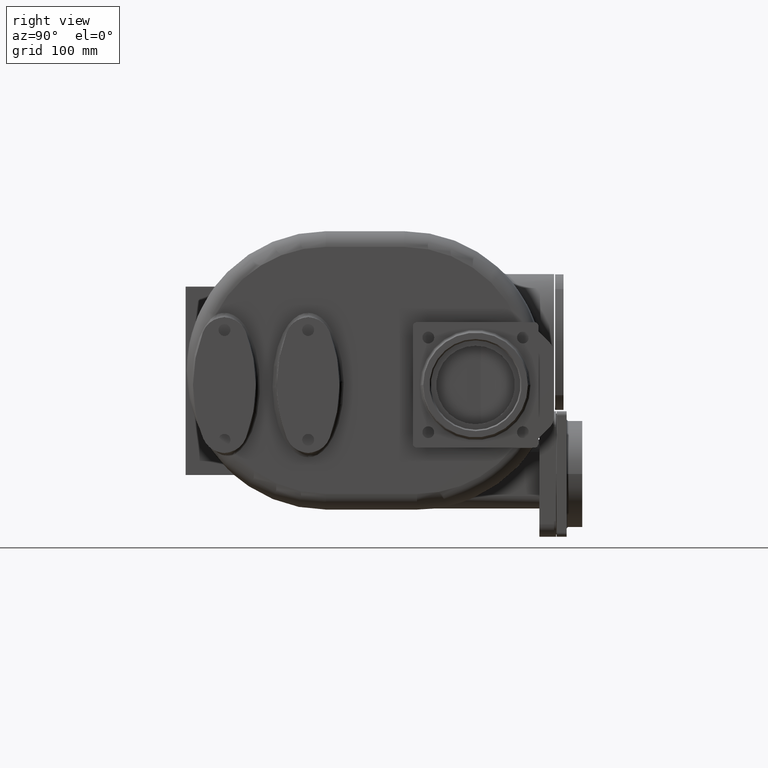
[diagram: clean part render]
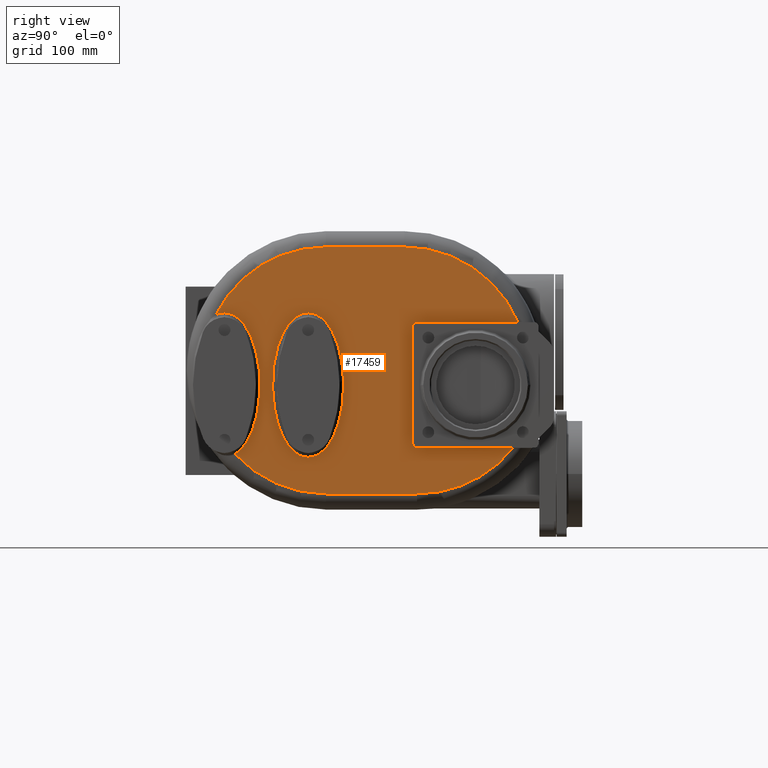
[diagram: same view with one face highlighted and labeled with its STEP entity id]
A machine part, right view. The second image highlights one B-rep face of the part: STEP entity #17459.
In plain terms, the highlighted planar face has unit normal (-1, 0, 0).
Its self-contained STEP definition (entity closure, byte-faithful):
#2974=DIRECTION('',(0.E0,1.E0,0.E0));
#2975=VECTOR('',#2974,8.400438864969E1);
#2976=CARTESIAN_POINT('',(1.1E2,2.29E2,-7.4E1));
#2977=LINE('',#2976,#2975);
#3019=DIRECTION('',(0.E0,0.E0,-1.E0));
#3020=VECTOR('',#3019,9.6E1);
#3021=CARTESIAN_POINT('',(1.1E2,2.17E2,3.4E1));
#3022=LINE('',#3021,#3020);
#3064=DIRECTION('',(0.E0,-1.E0,0.E0));
#3065=VECTOR('',#3064,8.853968893431E1);
#3066=CARTESIAN_POINT('',(1.1E2,3.175396889343E2,4.6E1));
#3067=LINE('',#3066,#3065);
#3579=CARTESIAN_POINT('',(1.1E2,2.29E2,3.4E1));
#3580=DIRECTION('',(-1.E0,0.E0,0.E0));
#3581=DIRECTION('',(0.E0,-1.E0,0.E0));
#3582=AXIS2_PLACEMENT_3D('',#3579,#3580,#3581);
#3584=CARTESIAN_POINT('',(1.100000341387E2,3.700000002161E1,5.499999999925E1));
#3585=CARTESIAN_POINT('',(1.100000708783E2,3.680097239023E1,5.499993196840E1));
#3586=CARTESIAN_POINT('',(1.099999671053E2,3.640292883573E1,5.499290041204E1));
#3587=CARTESIAN_POINT('',(1.100000088141E2,3.580601649330E1,5.496273074054E1));
#3588=CARTESIAN_POINT('',(1.099999976382E2,3.520890250204E1,5.491261561219E1));
#3589=CARTESIAN_POINT('',(1.100000006329E2,3.461137704476E1,5.484259038185E1));
#3590=CARTESIAN_POINT('',(1.099999998300E2,3.401322981939E1,5.475241493042E1));
#3591=CARTESIAN_POINT('',(1.100000000469E2,3.341429280710E1,5.464176403460E1));
#3592=CARTESIAN_POINT('',(1.099999999823E2,3.281449687905E1,5.451010134866E1));
#3593=CARTESIAN_POINT('',(1.100000000239E2,3.221359975980E1,5.435711922527E1));
#3594=CARTESIAN_POINT('',(1.099999999222E2,3.161082344791E1,5.418243015533E1));
#3595=CARTESIAN_POINT('',(1.100000002873E2,3.100552429685E1,5.398546861896E1));
#3596=CARTESIAN_POINT('',(1.099999989284E2,3.039710704402E1,5.376552558444E1));
#3597=CARTESIAN_POINT('',(1.100000039990E2,2.978527901622E1,5.352185783774E1));
#3598=CARTESIAN_POINT('',(1.099999850757E2,2.916921400116E1,5.325328612320E1));
#3599=CARTESIAN_POINT('',(1.100000321575E2,2.875690249957E1,5.305760617679E1));
#3600=CARTESIAN_POINT('',(1.099999968321E2,2.854941796201E1,5.295498208904E1));
#3602=CARTESIAN_POINT('',(1.1E2,1.34E2,0.E0));
#3603=DIRECTION('',(1.E0,0.E0,0.E0));
#3604=DIRECTION('',(0.E0,0.E0,1.E0));
#3605=AXIS2_PLACEMENT_3D('',#3602,#3603,#3604);
#3607=DIRECTION('',(0.E0,-1.E0,0.E0));
#3608=VECTOR('',#3607,7.487506727666E1);
#3609=CARTESIAN_POINT('',(1.1E2,2.088750672767E2,1.18E2));
#3610=LINE('',#3609,#3608);
#3611=CARTESIAN_POINT('',(1.1E2,2.088750672767E2,0.E0));
#3612=DIRECTION('',(1.E0,0.E0,0.E0));
#3613=DIRECTION('',(0.E0,9.208866242174E-1,3.898305084746E-1));
#3614=AXIS2_PLACEMENT_3D('',#3611,#3612,#3613);
#3616=CARTESIAN_POINT('',(1.1E2,2.210913863051E2,0.E0));
#3617=DIRECTION('',(1.E0,0.E0,0.E0));
#3618=DIRECTION('',(0.E0,0.E0,-1.E0));
#3619=AXIS2_PLACEMENT_3D('',#3616,#3617,#3618);
#3621=DIRECTION('',(0.E0,1.E0,0.E0));
#3622=VECTOR('',#3621,8.709138630508E1);
#3623=CARTESIAN_POINT('',(1.1E2,1.34E2,-1.18E2));
#3624=LINE('',#3623,#3622);
#3625=CARTESIAN_POINT('',(1.1E2,1.34E2,0.E0));
#3626=DIRECTION('',(1.E0,0.E0,0.E0));
#3627=DIRECTION('',(0.E0,-7.353211135372E-1,-6.777188650071E-1));
#3628=AXIS2_PLACEMENT_3D('',#3625,#3626,#3627);
#3630=CARTESIAN_POINT('',(1.099999543372E2,4.723210860638E1,-7.997082607466E1));
#3631=CARTESIAN_POINT('',(1.099999672044E2,4.744887637065E1,-7.983830972836E1));
#3632=CARTESIAN_POINT('',(1.100000152205E2,4.788421310808E1,-7.956267798863E1));
#3633=CARTESIAN_POINT('',(1.099999959217E2,4.854165435227E1,-7.911669413329E1));
#3634=CARTESIAN_POINT('',(1.100000010928E2,4.920403264646E1,-7.863645946711E1));
#3635=CARTESIAN_POINT('',(1.099999997072E2,4.987142502206E1,-7.812026977306E1));
#3636=CARTESIAN_POINT('',(1.100000000785E2,5.054382344706E1,-7.756641570659E1));
#3637=CARTESIAN_POINT('',(1.099999999790E2,5.122140767803E1,-7.697293014563E1));
#3638=CARTESIAN_POINT('',(1.100000000056E2,5.190458386940E1,-7.633753946764E1));
#3639=CARTESIAN_POINT('',(1.099999999985E2,5.259345536835E1,-7.565779639596E1));
#3640=CARTESIAN_POINT('',(1.100000000004E2,5.328793820990E1,-7.493123532316E1));
#3641=CARTESIAN_POINT('',(1.099999999999E2,5.398805002656E1,-7.415527772311E1));
#3642=CARTESIAN_POINT('',(1.1E2,5.469356915198E1,-7.332719221088E1));
#3643=CARTESIAN_POINT('',(1.1E2,5.540405553030E1,-7.244414900337E1));
#3644=CARTESIAN_POINT('',(1.1E2,5.611932054007E1,-7.150312800153E1));
#3645=CARTESIAN_POINT('',(1.1E2,5.683880787190E1,-7.050095686836E1));
#3646=CARTESIAN_POINT('',(1.1E2,5.756181289181E1,-6.943439112549E1));
#3647=CARTESIAN_POINT('',(1.1E2,5.828766710701E1,-6.830019903693E1));
#3648=CARTESIAN_POINT('',(1.1E2,5.901524028680E1,-6.709496643782E1));
#3649=CARTESIAN_POINT('',(1.1E2,5.974345550354E1,-6.581549086722E1));
#3650=CARTESIAN_POINT('',(1.1E2,6.047084105674E1,-6.445844271783E1));
#3651=CARTESIAN_POINT('',(1.1E2,6.119582239587E1,-6.302079162365E1));
#3652=CARTESIAN_POINT('',(1.1E2,6.191651517053E1,-6.149950079174E1));
#3653=CARTESIAN_POINT('',(1.1E2,6.263086393451E1,-5.989197344010E1));
#3654=CARTESIAN_POINT('',(1.1E2,6.333650082074E1,-5.819571771885E1));
#3655=CARTESIAN_POINT('',(1.1E2,6.403093264669E1,-5.640880873567E1));
#3656=CARTESIAN_POINT('',(1.1E2,6.471132017215E1,-5.452959470782E1));
#3657=CARTESIAN_POINT('',(1.1E2,6.537475395340E1,-5.255708300858E1));
#3658=CARTESIAN_POINT('',(1.1E2,6.601797956900E1,-5.049086526291E1));
#3659=CARTESIAN_POINT('',(1.1E2,6.663774219921E1,-4.833111773220E1));
#3660=CARTESIAN_POINT('',(1.1E2,6.723048124901E1,-4.607904488613E1));
#3661=CARTESIAN_POINT('',(1.1E2,6.779270800502E1,-4.373631667015E1));
#3662=CARTESIAN_POINT('',(1.1E2,6.832070958393E1,-4.130606128624E1));
#3663=CARTESIAN_POINT('',(1.1E2,6.881094878415E1,-3.879175315316E1));
#3664=CARTESIAN_POINT('',(1.1E2,6.925977533645E1,-3.619857936417E1));
#3665=CARTESIAN_POINT('',(1.1E2,6.966386836026E1,-3.353196396484E1));
#3666=CARTESIAN_POINT('',(1.1E2,7.001987983940E1,-3.079910475422E1));
#3667=CARTESIAN_POINT('',(1.1E2,7.032499614626E1,-2.800741775595E1));
#3668=CARTESIAN_POINT('',(1.1E2,7.057643095792E1,-2.516579590509E1));
#3669=CARTESIAN_POINT('',(1.1E2,7.077214762450E1,-2.228352557780E1));
#3670=CARTESIAN_POINT('',(1.1E2,7.091018617325E1,-1.937063317737E1));
#3671=CARTESIAN_POINT('',(1.1E2,7.098946177269E1,-1.643772968525E1));
#3672=CARTESIAN_POINT('',(1.1E2,7.100909297092E1,-1.349549588116E1));
#3673=CARTESIAN_POINT('',(1.1E2,7.096895849541E1,-1.055497448784E1));
#3674=CARTESIAN_POINT('',(1.1E2,7.086943039988E1,-7.627140036731E0));
#3675=CARTESIAN_POINT('',(1.1E2,7.071131924391E1,-4.722572269406E0));
#3676=CARTESIAN_POINT('',(1.1E2,7.049619211540E1,-1.851885386979E0));
#3677=CARTESIAN_POINT('',(1.1E2,7.022578760374E1,9.753195635171E-1));
#3678=CARTESIAN_POINT('',(1.1E2,6.990263025099E1,3.749580480794E0));
#3679=CARTESIAN_POINT('',(1.1E2,6.952928110042E1,6.462768362264E0));
#3680=CARTESIAN_POINT('',(1.1E2,6.910893796332E1,9.107190347574E0));
#3681=CARTESIAN_POINT('',(1.1E2,6.864476014091E1,1.167653731937E1));
#3682=CARTESIAN_POINT('',(1.1E2,6.814032802348E1,1.416509447983E1));
#3683=CARTESIAN_POINT('',(1.1E2,6.759917444943E1,1.656844657718E1));
#3684=CARTESIAN_POINT('',(1.1E2,6.702495166338E1,1.888299141485E1));
#3685=CARTESIAN_POINT('',(1.1E2,6.642130890859E1,2.110620680994E1));
#3686=CARTESIAN_POINT('',(1.1E2,6.579176217392E1,2.323644581004E1));
#3687=CARTESIAN_POINT('',(1.1E2,6.513981678193E1,2.527280239615E1));
#3688=CARTESIAN_POINT('',(1.1E2,6.446879482657E1,2.721520990690E1));
#3689=CARTESIAN_POINT('',(1.1E2,6.378178382749E1,2.906429340787E1));
#3690=CARTESIAN_POINT('',(1.1E2,6.308178974480E1,3.082129502099E1));
#3691=CARTESIAN_POINT('',(1.1E2,6.237141461552E1,3.248796925527E1));
#3692=CARTESIAN_POINT('',(1.1E2,6.165326452042E1,3.406648066119E1));
#3693=CARTESIAN_POINT('',(1.1E2,6.092945084944E1,3.555937412831E1));
#3694=CARTESIAN_POINT('',(1.1E2,6.020209381240E1,3.696951124710E1));
#3695=CARTESIAN_POINT('',(1.1E2,5.947282674754E1,3.829989993361E1));
#3696=CARTESIAN_POINT('',(1.1E2,5.874330196921E1,3.955381225531E1));
#3697=CARTESIAN_POINT('',(1.1E2,5.801476097966E1,4.073435987854E1));
#3698=CARTESIAN_POINT('',(1.1E2,5.728843809056E1,4.184497366577E1));
#3699=CARTESIAN_POINT('',(1.1E2,5.656524817580E1,4.288878899396E1));
#3700=CARTESIAN_POINT('',(1.1E2,5.584593092887E1,4.386916128843E1));
#3701=CARTESIAN_POINT('',(1.1E2,5.513116875858E1,4.478935179873E1));
#3702=CARTESIAN_POINT('',(1.1E2,5.442137599042E1,4.565229257165E1));
#3703=CARTESIAN_POINT('',(1.1E2,5.371680006250E1,4.646123334315E1));
#3704=CARTESIAN_POINT('',(1.1E2,5.301777768746E1,4.721893738667E1));
#3705=CARTESIAN_POINT('',(1.1E2,5.232443197990E1,4.792800267063E1));
#3706=CARTESIAN_POINT('',(1.1E2,5.163673199935E1,4.859119206872E1));
#3707=CARTESIAN_POINT('',(1.1E2,5.095479997234E1,4.921077253581E1));
#3708=CARTESIAN_POINT('',(1.1E2,5.027850419576E1,4.978901828186E1));
#3709=CARTESIAN_POINT('',(1.1E2,4.960768428574E1,5.032813422770E1));
#3710=CARTESIAN_POINT('',(1.1E2,4.894232547867E1,5.082994972944E1));
#3711=CARTESIAN_POINT('',(1.1E2,4.828213603521E1,5.129636223599E1));
#3712=CARTESIAN_POINT('',(1.1E2,4.762694333652E1,5.172904345603E1));
#3713=CARTESIAN_POINT('',(1.1E2,4.697656343680E1,5.212952064717E1));
#3714=CARTESIAN_POINT('',(1.1E2,4.633063482376E1,5.249927275727E1));
#3715=CARTESIAN_POINT('',(1.1E2,4.568902445777E1,5.283954770875E1));
#3716=CARTESIAN_POINT('',(1.1E2,4.505144422475E1,5.315155989620E1));
#3717=CARTESIAN_POINT('',(1.1E2,4.441755838722E1,5.343639881120E1));
#3718=CARTESIAN_POINT('',(1.1E2,4.378701471232E1,5.369511280988E1));
#3719=CARTESIAN_POINT('',(1.100000000001E2,4.315941863997E1,5.392857126555E1));
#3720=CARTESIAN_POINT('',(1.099999999996E2,4.253474345312E1,5.413747290600E1));
#3721=CARTESIAN_POINT('',(1.100000000017E2,4.191292699206E1,5.432250362541E1));
#3722=CARTESIAN_POINT('',(1.099999999938E2,4.129347835992E1,5.448429294201E1));
#3723=CARTESIAN_POINT('',(1.100000000233E2,4.067575628066E1,5.462351051313E1));
#3724=CARTESIAN_POINT('',(1.099999999132E2,4.005894743094E1,5.474070176983E1));
#3725=CARTESIAN_POINT('',(1.100000003241E2,3.944319414709E1,5.483601554072E1));
#3726=CARTESIAN_POINT('',(1.099999987906E2,3.882898942710E1,5.490969619920E1));
#3727=CARTESIAN_POINT('',(1.100000045135E2,3.821673042123E1,5.496201239117E1));
#3728=CARTESIAN_POINT('',(1.099999831555E2,3.760673863994E1,5.499312083509E1));
#3729=CARTESIAN_POINT('',(1.100000362950E2,3.720195379061E1,5.499999627569E1));
#3730=CARTESIAN_POINT('',(1.100000341387E2,3.700000002161E1,5.499999999925E1));
#3732=CARTESIAN_POINT('',(1.100000345692E2,1.169999999769E2,-8.299999999909E1));
#3733=CARTESIAN_POINT('',(1.100000745274E2,1.172053575770E2,-8.299992015309E1));
#3734=CARTESIAN_POINT('',(1.099999654117E2,1.176161083095E2,-8.299239693976E1));
#3735=CARTESIAN_POINT('',(1.100000092679E2,1.182322454488E2,-8.296024805425E1));
#3736=CARTESIAN_POINT('',(1.099999975167E2,1.188486817463E2,-8.290683730320E1));
#3737=CARTESIAN_POINT('',(1.100000006654E2,1.194655815942E2,-8.283221162818E1));
#3738=CARTESIAN_POINT('',(1.099999998217E2,1.200830988653E2,-8.273610954363E1));
#3739=CARTESIAN_POINT('',(1.100000000478E2,1.207013450469E2,-8.261818579854E1));
#3740=CARTESIAN_POINT('',(1.099999999872E2,1.213203131283E2,-8.247786722334E1));
#3741=CARTESIAN_POINT('',(1.100000000034E2,1.219402165592E2,-8.231484758850E1));
#3742=CARTESIAN_POINT('',(1.099999999991E2,1.225622907589E2,-8.212859659191E1));
#3743=CARTESIAN_POINT('',(1.100000000002E2,1.231875387932E2,-8.191835218674E1));
#3744=CARTESIAN_POINT('',(1.099999999999E2,1.238170169391E2,-8.168309934260E1));
#3745=CARTESIAN_POINT('',(1.1E2,1.244505492748E2,-8.142207613776E1));
#3746=CARTESIAN_POINT('',(1.1E2,1.250874525148E2,-8.113466880634E1));
#3747=CARTESIAN_POINT('',(1.1E2,1.257267847247E2,-8.082035444312E1));
#3748=CARTESIAN_POINT('',(1.1E2,1.263690360287E2,-8.047813394957E1));
#3749=CARTESIAN_POINT('',(1.1E2,1.270157445933E2,-8.010623741457E1));
#3750=CARTESIAN_POINT('',(1.1E2,1.276680814920E2,-7.970276645046E1));
#3751=CARTESIAN_POINT('',(1.1E2,1.283259946959E2,-7.926635160042E1));
#3752=CARTESIAN_POINT('',(1.1E2,1.289888716501E2,-7.879594261937E1));
#3753=CARTESIAN_POINT('',(1.1E2,1.296564509546E2,-7.829017178613E1));
#3754=CARTESIAN_POINT('',(1.1E2,1.303294379665E2,-7.774679386344E1));
#3755=CARTESIAN_POINT('',(1.1E2,1.310081737212E2,-7.716364332716E1));
#3756=CARTESIAN_POINT('',(1.1E2,1.316927969564E2,-7.653862595468E1));
#3757=CARTESIAN_POINT('',(1.1E2,1.323833029157E2,-7.586948369876E1));
#3758=CARTESIAN_POINT('',(1.1E2,1.330797731133E2,-7.515353643051E1));
#3759=CARTESIAN_POINT('',(1.1E2,1.337820721812E2,-7.438828556443E1));
#3760=CARTESIAN_POINT('',(1.1E2,1.344899214568E2,-7.357119955131E1));
#3761=CARTESIAN_POINT('',(1.1E2,1.352031160169E2,-7.269912005095E1));
#3762=CARTESIAN_POINT('',(1.1E2,1.359212662584E2,-7.176917188384E1));
#3763=CARTESIAN_POINT('',(1.1E2,1.366438278848E2,-7.077835884515E1));
#3764=CARTESIAN_POINT('',(1.1E2,1.373701645551E2,-6.972321120222E1));
#3765=CARTESIAN_POINT('',(1.1E2,1.380995361843E2,-6.860063945077E1));
#3766=CARTESIAN_POINT('',(1.1E2,1.388308747968E2,-6.740722910300E1));
#3767=CARTESIAN_POINT('',(1.1E2,1.395630336881E2,-6.613975013247E1));
#3768=CARTESIAN_POINT('',(1.1E2,1.402946136415E2,-6.479496668735E1));
#3769=CARTESIAN_POINT('',(1.1E2,1.410240615075E2,-6.336961756951E1));
#3770=CARTESIAN_POINT('',(1.1E2,1.417495674106E2,-6.186070997889E1));
#3771=CARTESIAN_POINT('',(1.1E2,1.424690930081E2,-6.026541185902E1));
#3772=CARTESIAN_POINT('',(1.1E2,1.431803221155E2,-5.858123122104E1));
#3773=CARTESIAN_POINT('',(1.1E2,1.438808111785E2,-5.680594179471E1));
#3774=CARTESIAN_POINT('',(1.1E2,1.445677013472E2,-5.493790578014E1));
#3775=CARTESIAN_POINT('',(1.1E2,1.452381271049E2,-5.297591353351E1));
#3776=CARTESIAN_POINT('',(1.1E2,1.458887747195E2,-5.091949510894E1));
#3777=CARTESIAN_POINT('',(1.1E2,1.465164184936E2,-4.876874469639E1));
#3778=CARTESIAN_POINT('',(1.1E2,1.471174391630E2,-4.652463768519E1));
#3779=CARTESIAN_POINT('',(1.1E2,1.476883464577E2,-4.418891786254E1));
#3780=CARTESIAN_POINT('',(1.1E2,1.482253696211E2,-4.176434181166E1));
#3781=CARTESIAN_POINT('',(1.1E2,1.487249439580E2,-3.925458234104E1));
#3782=CARTESIAN_POINT('',(1.1E2,1.491833474196E2,-3.666439705538E1));
#3783=CARTESIAN_POINT('',(1.1E2,1.495972229965E2,-3.399943960634E1));
#3784=CARTESIAN_POINT('',(1.1E2,1.499631245334E2,-3.126656748319E1));
#3785=CARTESIAN_POINT('',(1.1E2,1.502782064750E2,-2.847326572713E1));
#3786=CARTESIAN_POINT('',(1.1E2,1.505395592222E2,-2.562842882548E1));
#3787=CARTESIAN_POINT('',(1.1E2,1.507450996823E2,-2.274111837272E1));
#3788=CARTESIAN_POINT('',(1.1E2,1.508927710620E2,-1.982171890690E1));
#3789=CARTESIAN_POINT('',(1.1E2,1.509813845373E2,-1.688056515121E1));
#3790=CARTESIAN_POINT('',(1.1E2,1.510100333424E2,-1.392867289549E1));
#3791=CARTESIAN_POINT('',(1.1E2,1.509784574822E2,-1.097716288549E1));
#3792=CARTESIAN_POINT('',(1.1E2,1.508870351841E2,-8.037008227826E0));
#3793=CARTESIAN_POINT('',(1.1E2,1.507364737569E2,-5.119148663093E0));
#3794=CARTESIAN_POINT('',(1.1E2,1.505283282856E2,-2.234143639390E0));
#3795=CARTESIAN_POINT('',(1.1E2,1.502642933553E2,6.080969789061E-1));
#3796=CARTESIAN_POINT('',(1.1E2,1.499468768304E2,3.398014640991E0));
#3797=CARTESIAN_POINT('',(1.1E2,1.495786302599E2,6.127294053383E0));
#3798=CARTESIAN_POINT('',(1.1E2,1.491627558978E2,8.788076084406E0));
#3799=CARTESIAN_POINT('',(1.1E2,1.487024240676E2,1.137386043306E1));
#3800=CARTESIAN_POINT('',(1.1E2,1.482012325867E2,1.387888399715E1));
#3801=CARTESIAN_POINT('',(1.1E2,1.476627453580E2,1.629847051437E1));
#3802=CARTESIAN_POINT('',(1.1E2,1.470906484976E2,1.862900738987E1));
#3803=CARTESIAN_POINT('',(1.1E2,1.464886504955E2,2.086772020388E1));
#3804=CARTESIAN_POINT('',(1.1E2,1.458603230284E2,2.301287181289E1));
#3805=CARTESIAN_POINT('',(1.1E2,1.452092153750E2,2.506354532793E1));
#3806=CARTESIAN_POINT('',(1.1E2,1.445387002688E2,2.701954771034E1));
#3807=CARTESIAN_POINT('',(1.1E2,1.438518898291E2,2.888161520049E1));
#3808=CARTESIAN_POINT('',(1.1E2,1.431518072100E2,3.065095847951E1));
#3809=CARTESIAN_POINT('',(1.1E2,1.424410697132E2,3.232942099220E1));
#3810=CARTESIAN_POINT('',(1.1E2,1.417222779180E2,3.391920765985E1));
#3811=CARTESIAN_POINT('',(1.1E2,1.409975848896E2,3.542283601458E1));
#3812=CARTESIAN_POINT('',(1.1E2,1.402691377107E2,3.684316849296E1));
#3813=CARTESIAN_POINT('',(1.1E2,1.395386070322E2,3.818318965233E1));
#3814=CARTESIAN_POINT('',(1.1E2,1.388076922267E2,3.944614445146E1));
#3815=CARTESIAN_POINT('',(1.1E2,1.380776618765E2,4.063517077330E1));
#3816=CARTESIAN_POINT('',(1.1E2,1.373497773146E2,4.175367794923E1));
#3817=CARTESIAN_POINT('',(1.1E2,1.366249685285E2,4.280488794282E1));
#3818=CARTESIAN_POINT('',(1.1E2,1.359039539036E2,4.379216913558E1));
#3819=CARTESIAN_POINT('',(1.1E2,1.351874558381E2,4.471881664416E1));
#3820=CARTESIAN_POINT('',(1.1E2,1.344758243489E2,4.558786831528E1));
#3821=CARTESIAN_POINT('',(1.1E2,1.337693138840E2,4.640256030313E1));
#3822=CARTESIAN_POINT('',(1.1E2,1.330683113631E2,4.716565769177E1));
#3823=CARTESIAN_POINT('',(1.1E2,1.323728768540E2,4.787983188238E1));
#3824=CARTESIAN_POINT('',(1.1E2,1.316830344258E2,4.854779608833E1));
#3825=CARTESIAN_POINT('',(1.1E2,1.309989231180E2,4.917183971461E1));
#3826=CARTESIAN_POINT('',(1.1E2,1.303203885946E2,4.975426343087E1));
#3827=CARTESIAN_POINT('',(1.1E2,1.296473421868E2,5.029722955769E1));
#3828=CARTESIAN_POINT('',(1.1E2,1.289797476702E2,5.080261115936E1));
#3829=CARTESIAN_POINT('',(1.1E2,1.283173226881E2,5.127231116597E1));
#3830=CARTESIAN_POINT('',(1.1E2,1.276599310065E2,5.170799535181E1));
#3831=CARTESIAN_POINT('',(1.1E2,1.270073628142E2,5.211122652628E1));
#3832=CARTESIAN_POINT('',(1.1E2,1.263592956549E2,5.248347617059E1));
#3833=CARTESIAN_POINT('',(1.1E2,1.257155887563E2,5.282601223898E1));
#3834=CARTESIAN_POINT('',(1.1E2,1.250759467661E2,5.314007034611E1));
#3835=CARTESIAN_POINT('',(1.1E2,1.244400340751E2,5.342675104526E1));
#3836=CARTESIAN_POINT('',(1.1E2,1.238074725545E2,5.368712488324E1));
#3837=CARTESIAN_POINT('',(1.100000000001E2,1.231779030699E2,5.392205853563E1));
#3838=CARTESIAN_POINT('',(1.099999999995E2,1.225512973177E2,5.413225829467E1));
#3839=CARTESIAN_POINT('',(1.100000000017E2,1.219275902495E2,5.431842421095E1));
#3840=CARTESIAN_POINT('',(1.099999999937E2,1.213062487196E2,5.448120519914E1));
#3841=CARTESIAN_POINT('',(1.100000000235E2,1.206866194812E2,5.462127403449E1));
#3842=CARTESIAN_POINT('',(1.099999999121E2,1.200678870827E2,5.473918086127E1));
#3843=CARTESIAN_POINT('',(1.100000003280E2,1.194502578408E2,5.483506569484E1));
#3844=CARTESIAN_POINT('',(1.099999987761E2,1.188342149708E2,5.490917968171E1));
#3845=CARTESIAN_POINT('',(1.100000045678E2,1.182201633492E2,5.496179811321E1));
#3846=CARTESIAN_POINT('',(1.099999829529E2,1.176084258838E2,5.499308308536E1));
#3847=CARTESIAN_POINT('',(1.100000367314E2,1.172025107467E2,5.499999626524E1));
#3848=CARTESIAN_POINT('',(1.100000345692E2,1.170000000231E2,5.499999999909E1));
#3850=CARTESIAN_POINT('',(1.100000345692E2,1.170000000231E2,5.499999999909E1));
#3851=CARTESIAN_POINT('',(1.100000745274E2,1.167946424230E2,5.499992015309E1));
#3852=CARTESIAN_POINT('',(1.099999654117E2,1.163838916905E2,5.499239693976E1));
#3853=CARTESIAN_POINT('',(1.100000092679E2,1.157677545512E2,5.496024805425E1));
#3854=CARTESIAN_POINT('',(1.099999975167E2,1.151513182537E2,5.490683730320E1));
#3855=CARTESIAN_POINT('',(1.100000006654E2,1.145344184058E2,5.483221162818E1));
#3856=CARTESIAN_POINT('',(1.099999998217E2,1.139169011347E2,5.473610954363E1));
#3857=CARTESIAN_POINT('',(1.100000000478E2,1.132986549531E2,5.461818579854E1));
#3858=CARTESIAN_POINT('',(1.099999999872E2,1.126796868717E2,5.447786722334E1));
#3859=CARTESIAN_POINT('',(1.100000000034E2,1.120597834408E2,5.431484758850E1));
#3860=CARTESIAN_POINT('',(1.099999999991E2,1.114377092411E2,5.412859659191E1));
#3861=CARTESIAN_POINT('',(1.100000000002E2,1.108124612068E2,5.391835218674E1));
#3862=CARTESIAN_POINT('',(1.099999999999E2,1.101829830609E2,5.368309934260E1));
#3863=CARTESIAN_POINT('',(1.1E2,1.095494507252E2,5.342207613776E1));
#3864=CARTESIAN_POINT('',(1.1E2,1.089125474852E2,5.313466880634E1));
#3865=CARTESIAN_POINT('',(1.1E2,1.082732152753E2,5.282035444312E1));
#3866=CARTESIAN_POINT('',(1.1E2,1.076309639713E2,5.247813394957E1));
#3867=CARTESIAN_POINT('',(1.1E2,1.069842554067E2,5.210623741457E1));
#3868=CARTESIAN_POINT('',(1.1E2,1.063319185080E2,5.170276645046E1));
#3869=CARTESIAN_POINT('',(1.1E2,1.056740053041E2,5.126635160042E1));
#3870=CARTESIAN_POINT('',(1.1E2,1.050111283499E2,5.079594261937E1));
#3871=CARTESIAN_POINT('',(1.1E2,1.043435490454E2,5.029017178613E1));
#3872=CARTESIAN_POINT('',(1.1E2,1.036705620335E2,4.974679386344E1));
#3873=CARTESIAN_POINT('',(1.1E2,1.029918262788E2,4.916364332716E1));
#3874=CARTESIAN_POINT('',(1.1E2,1.023072030436E2,4.853862595468E1));
#3875=CARTESIAN_POINT('',(1.1E2,1.016166970843E2,4.786948369876E1));
#3876=CARTESIAN_POINT('',(1.1E2,1.009202268867E2,4.715353643051E1));
#3877=CARTESIAN_POINT('',(1.1E2,1.002179278188E2,4.638828556443E1));
#3878=CARTESIAN_POINT('',(1.1E2,9.951007854321E1,4.557119955131E1));
#3879=CARTESIAN_POINT('',(1.1E2,9.879688398315E1,4.469912005095E1));
#3880=CARTESIAN_POINT('',(1.1E2,9.807873374160E1,4.376917188384E1));
#3881=CARTESIAN_POINT('',(1.1E2,9.735617211520E1,4.277835884515E1));
#3882=CARTESIAN_POINT('',(1.1E2,9.662983544495E1,4.172321120222E1));
#3883=CARTESIAN_POINT('',(1.1E2,9.590046381573E1,4.060063945077E1));
#3884=CARTESIAN_POINT('',(1.1E2,9.516912520325E1,3.940722910300E1));
#3885=CARTESIAN_POINT('',(1.1E2,9.443696631195E1,3.813975013246E1));
#3886=CARTESIAN_POINT('',(1.1E2,9.370538635855E1,3.679496668734E1));
#3887=CARTESIAN_POINT('',(1.1E2,9.297593849255E1,3.536961756951E1));
#3888=CARTESIAN_POINT('',(1.1E2,9.225043258941E1,3.386070997889E1));
#3889=CARTESIAN_POINT('',(1.1E2,9.153090699194E1,3.226541185902E1));
#3890=CARTESIAN_POINT('',(1.1E2,9.081967788455E1,3.058123122104E1));
#3891=CARTESIAN_POINT('',(1.1E2,9.011918882148E1,2.880594179471E1));
#3892=CARTESIAN_POINT('',(1.1E2,8.943229865277E1,2.693790578014E1));
#3893=CARTESIAN_POINT('',(1.1E2,8.876187289509E1,2.497591353351E1));
#3894=CARTESIAN_POINT('',(1.1E2,8.811122528049E1,2.291949510893E1));
#3895=CARTESIAN_POINT('',(1.1E2,8.748358150643E1,2.076874469638E1));
#3896=CARTESIAN_POINT('',(1.1E2,8.688256083700E1,1.852463768519E1));
#3897=CARTESIAN_POINT('',(1.1E2,8.631165354226E1,1.618891786253E1));
#3898=CARTESIAN_POINT('',(1.1E2,8.577463037894E1,1.376434181166E1));
#3899=CARTESIAN_POINT('',(1.1E2,8.527505604205E1,1.125458234104E1));
#3900=CARTESIAN_POINT('',(1.1E2,8.481665258038E1,8.664397055382E0));
#3901=CARTESIAN_POINT('',(1.1E2,8.440277700348E1,5.999439606339E0));
#3902=CARTESIAN_POINT('',(1.1E2,8.403687546658E1,3.266567483190E0));
#3903=CARTESIAN_POINT('',(1.1E2,8.372179352500E1,4.732657271306E-1));
#3904=CARTESIAN_POINT('',(1.1E2,8.346044077785E1,-2.371571174523E0));
#3905=CARTESIAN_POINT('',(1.1E2,8.325490031775E1,-5.258881627285E0));
#3906=CARTESIAN_POINT('',(1.1E2,8.310722893804E1,-8.178281093101E0));
#3907=CARTESIAN_POINT('',(1.1E2,8.301861546265E1,-1.111943484879E1));
#3908=CARTESIAN_POINT('',(1.1E2,8.298996665763E1,-1.407132710451E1));
#3909=CARTESIAN_POINT('',(1.1E2,8.302154251781E1,-1.702283711451E1));
#3910=CARTESIAN_POINT('',(1.1E2,8.311296481593E1,-1.996299177218E1));
#3911=CARTESIAN_POINT('',(1.1E2,8.326352624314E1,-2.288085133691E1));
#3912=CARTESIAN_POINT('',(1.1E2,8.347167171435E1,-2.576585636061E1));
#3913=CARTESIAN_POINT('',(1.1E2,8.373570664465E1,-2.860809697891E1));
#3914=CARTESIAN_POINT('',(1.1E2,8.405312316963E1,-3.139801464099E1));
#3915=CARTESIAN_POINT('',(1.1E2,8.442136974011E1,-3.412729405338E1));
#3916=CARTESIAN_POINT('',(1.1E2,8.483724410217E1,-3.678807608441E1));
#3917=CARTESIAN_POINT('',(1.1E2,8.529757593245E1,-3.937386043306E1));
#3918=CARTESIAN_POINT('',(1.1E2,8.579876741331E1,-4.187888399715E1));
#3919=CARTESIAN_POINT('',(1.1E2,8.633725464197E1,-4.429847051437E1));
#3920=CARTESIAN_POINT('',(1.1E2,8.690935150243E1,-4.662900738987E1));
#3921=CARTESIAN_POINT('',(1.1E2,8.751134950451E1,-4.886772020388E1));
#3922=CARTESIAN_POINT('',(1.1E2,8.813967697164E1,-5.101287181289E1));
#3923=CARTESIAN_POINT('',(1.1E2,8.879078462502E1,-5.306354532793E1));
#3924=CARTESIAN_POINT('',(1.1E2,8.946129973125E1,-5.501954771034E1));
#3925=CARTESIAN_POINT('',(1.1E2,9.014811017088E1,-5.688161520049E1));
#3926=CARTESIAN_POINT('',(1.1E2,9.084819278999E1,-5.865095847951E1));
#3927=CARTESIAN_POINT('',(1.1E2,9.155893028675E1,-6.032942099220E1));
#3928=CARTESIAN_POINT('',(1.1E2,9.227772208202E1,-6.191920765985E1));
#3929=CARTESIAN_POINT('',(1.1E2,9.300241511037E1,-6.342283601458E1));
#3930=CARTESIAN_POINT('',(1.1E2,9.373086228927E1,-6.484316849296E1));
#3931=CARTESIAN_POINT('',(1.1E2,9.446139296779E1,-6.618318965232E1));
#3932=CARTESIAN_POINT('',(1.1E2,9.519230777331E1,-6.744614445146E1));
#3933=CARTESIAN_POINT('',(1.1E2,9.592233812352E1,-6.863517077330E1));
#3934=CARTESIAN_POINT('',(1.1E2,9.665022268535E1,-6.975367794923E1));
#3935=CARTESIAN_POINT('',(1.1E2,9.737503147146E1,-7.080488794282E1));
#3936=CARTESIAN_POINT('',(1.1E2,9.809604609639E1,-7.179216913558E1));
#3937=CARTESIAN_POINT('',(1.1E2,9.881254416189E1,-7.271881664416E1));
#3938=CARTESIAN_POINT('',(1.1E2,9.952417565110E1,-7.358786831528E1));
#3939=CARTESIAN_POINT('',(1.1E2,1.002306861160E2,-7.440256030313E1));
#3940=CARTESIAN_POINT('',(1.1E2,1.009316886369E2,-7.516565769177E1));
#3941=CARTESIAN_POINT('',(1.1E2,1.016271231460E2,-7.587983188237E1));
#3942=CARTESIAN_POINT('',(1.1E2,1.023169655742E2,-7.654779608833E1));
#3943=CARTESIAN_POINT('',(1.1E2,1.030010768820E2,-7.717183971461E1));
#3944=CARTESIAN_POINT('',(1.1E2,1.036796114054E2,-7.775426343087E1));
#3945=CARTESIAN_POINT('',(1.1E2,1.043526578132E2,-7.829722955769E1));
#3946=CARTESIAN_POINT('',(1.1E2,1.050202523298E2,-7.880261115936E1));
#3947=CARTESIAN_POINT('',(1.1E2,1.056826773119E2,-7.927231116597E1));
#3948=CARTESIAN_POINT('',(1.1E2,1.063400689935E2,-7.970799535181E1));
#3949=CARTESIAN_POINT('',(1.1E2,1.069926371858E2,-8.011122652628E1));
#3950=CARTESIAN_POINT('',(1.1E2,1.076407043451E2,-8.048347617059E1));
#3951=CARTESIAN_POINT('',(1.1E2,1.082844112437E2,-8.082601223898E1));
#3952=CARTESIAN_POINT('',(1.1E2,1.089240532339E2,-8.114007034611E1));
#3953=CARTESIAN_POINT('',(1.1E2,1.095599659249E2,-8.142675104526E1));
#3954=CARTESIAN_POINT('',(1.1E2,1.101925274455E2,-8.168712488324E1));
#3955=CARTESIAN_POINT('',(1.100000000001E2,1.108220969301E2,-8.192205853563E1));
#3956=CARTESIAN_POINT('',(1.099999999995E2,1.114487026823E2,-8.213225829467E1));
#3957=CARTESIAN_POINT('',(1.100000000017E2,1.120724097505E2,-8.231842421095E1));
#3958=CARTESIAN_POINT('',(1.099999999937E2,1.126937512804E2,-8.248120519914E1));
#3959=CARTESIAN_POINT('',(1.100000000235E2,1.133133805188E2,-8.262127403449E1));
#3960=CARTESIAN_POINT('',(1.099999999121E2,1.139321129173E2,-8.273918086127E1));
#3961=CARTESIAN_POINT('',(1.100000003280E2,1.145497421592E2,-8.283506569484E1));
#3962=CARTESIAN_POINT('',(1.099999987761E2,1.151657850292E2,-8.290917968171E1));
#3963=CARTESIAN_POINT('',(1.100000045678E2,1.157798366508E2,-8.296179811321E1));
#3964=CARTESIAN_POINT('',(1.099999829529E2,1.163915741162E2,-8.299308308536E1));
#3965=CARTESIAN_POINT('',(1.100000367314E2,1.167974892533E2,-8.299999626524E1));
#3966=CARTESIAN_POINT('',(1.100000345692E2,1.169999999769E2,-8.299999999909E1));
#5114=CARTESIAN_POINT('',(1.1E2,2.29E2,-6.2E1));
#5115=DIRECTION('',(-1.E0,0.E0,0.E0));
#5116=DIRECTION('',(0.E0,0.E0,-1.E0));
#5117=AXIS2_PLACEMENT_3D('',#5114,#5115,#5116);
#10280=CARTESIAN_POINT('',(1.1E2,2.17E2,3.4E1));
#10281=CARTESIAN_POINT('',(1.1E2,2.17E2,-6.2E1));
#10282=VERTEX_POINT('',#10280);
#10283=VERTEX_POINT('',#10281);
#10284=CARTESIAN_POINT('',(1.1E2,2.29E2,-7.4E1));
#10285=VERTEX_POINT('',#10284);
#10286=CARTESIAN_POINT('',(1.1E2,2.29E2,4.6E1));
#10287=VERTEX_POINT('',#10286);
#10292=CARTESIAN_POINT('',(1.1E2,2.210913863051E2,-1.18E2));
#10293=CARTESIAN_POINT('',(1.1E2,3.130043886497E2,-7.4E1));
#10294=VERTEX_POINT('',#10292);
#10295=VERTEX_POINT('',#10293);
#10296=CARTESIAN_POINT('',(1.1E2,1.34E2,-1.18E2));
#10297=VERTEX_POINT('',#10296);
#10302=CARTESIAN_POINT('',(1.1E2,2.088750672767E2,1.18E2));
#10303=CARTESIAN_POINT('',(1.1E2,1.34E2,1.18E2));
#10304=VERTEX_POINT('',#10302);
#10305=VERTEX_POINT('',#10303);
#10308=CARTESIAN_POINT('',(1.1E2,3.175396889343E2,4.6E1));
#10309=VERTEX_POINT('',#10308);
#10348=VERTEX_POINT('',#3732);
#10349=VERTEX_POINT('',#3848);
#10380=VERTEX_POINT('',#3584);
#10381=VERTEX_POINT('',#3600);
#10383=VERTEX_POINT('',#3630);
#17424=CARTESIAN_POINT('',(1.1E2,1.32E2,0.E0));
#17425=DIRECTION('',(-1.E0,0.E0,0.E0));
#17426=DIRECTION('',(0.E0,0.E0,1.E0));
#17427=AXIS2_PLACEMENT_3D('',#17424,#17425,#17426);
#17428=PLANE('',#17427);
#17430=ORIENTED_EDGE('',*,*,#17429,.T.);
#17432=ORIENTED_EDGE('',*,*,#17431,.F.);
#17434=ORIENTED_EDGE('',*,*,#17433,.F.);
#17436=ORIENTED_EDGE('',*,*,#17435,.F.);
#17437=ORIENTED_EDGE('',*,*,#16680,.T.);
#17438=ORIENTED_EDGE('',*,*,#17416,.F.);
#17439=ORIENTED_EDGE('',*,*,#16623,.T.);
#17441=ORIENTED_EDGE('',*,*,#17440,.F.);
#17442=ORIENTED_EDGE('',*,*,#16564,.T.);
#17444=ORIENTED_EDGE('',*,*,#17443,.F.);
#17446=ORIENTED_EDGE('',*,*,#17445,.F.);
#17448=ORIENTED_EDGE('',*,*,#17447,.F.);
#17450=ORIENTED_EDGE('',*,*,#17449,.T.);
#17451=EDGE_LOOP('',(#17430,#17432,#17434,#17436,#17437,#17438,#17439,#17441,
#17442,#17444,#17446,#17448,#17450));
#17452=FACE_OUTER_BOUND('',#17451,.F.);
#17454=ORIENTED_EDGE('',*,*,#17453,.T.);
#17456=ORIENTED_EDGE('',*,*,#17455,.T.);
#17457=EDGE_LOOP('',(#17454,#17456));
#17458=FACE_BOUND('',#17457,.F.);
#17459=ADVANCED_FACE('',(#17452,#17458),#17428,.F.);
#3583=CIRCLE('',#3582,1.2E1);
#3601=B_SPLINE_CURVE_WITH_KNOTS('',3,(#3584,#3585,#3586,#3587,#3588,#3589,#3590,
#3591,#3592,#3593,#3594,#3595,#3596,#3597,#3598,#3599,#3600),.UNSPECIFIED.,.F.,
.F.,(4,1,1,1,1,1,1,1,1,1,1,1,1,1,4),(0.E0,7.142857142857E-2,1.428571428571E-1,
2.142857142857E-1,2.857142857143E-1,3.571428571429E-1,4.285714285714E-1,5.E-1,
5.714285714286E-1,6.428571428571E-1,7.142857142857E-1,7.857142857143E-1,
8.571428571429E-1,9.285714285714E-1,1.E0),.UNSPECIFIED.);
#3606=CIRCLE('',#3605,1.18E2);
#3615=CIRCLE('',#3614,1.18E2);
#3620=CIRCLE('',#3619,1.18E2);
#3629=CIRCLE('',#3628,1.18E2);
#3731=B_SPLINE_CURVE_WITH_KNOTS('',3,(#3630,#3631,#3632,#3633,#3634,#3635,#3636,
#3637,#3638,#3639,#3640,#3641,#3642,#3643,#3644,#3645,#3646,#3647,#3648,#3649,
#3650,#3651,#3652,#3653,#3654,#3655,#3656,#3657,#3658,#3659,#3660,#3661,#3662,
#3663,#3664,#3665,#3666,#3667,#3668,#3669,#3670,#3671,#3672,#3673,#3674,#3675,
#3676,#3677,#3678,#3679,#3680,#3681,#3682,#3683,#3684,#3685,#3686,#3687,#3688,
#3689,#3690,#3691,#3692,#3693,#3694,#3695,#3696,#3697,#3698,#3699,#3700,#3701,
#3702,#3703,#3704,#3705,#3706,#3707,#3708,#3709,#3710,#3711,#3712,#3713,#3714,
#3715,#3716,#3717,#3718,#3719,#3720,#3721,#3722,#3723,#3724,#3725,#3726,#3727,
#3728,#3729,#3730),.UNSPECIFIED.,.F.,.F.,(4,1,1,1,1,1,1,1,1,1,1,1,1,1,1,1,1,1,1,
1,1,1,1,1,1,1,1,1,1,1,1,1,1,1,1,1,1,1,1,1,1,1,1,1,1,1,1,1,1,1,1,1,1,1,1,1,1,1,1,
1,1,1,1,1,1,1,1,1,1,1,1,1,1,1,1,1,1,1,1,1,1,1,1,1,1,1,1,1,1,1,1,1,1,1,1,1,1,1,
4),(0.E0,1.020408163265E-2,2.040816326531E-2,3.061224489796E-2,
4.081632653061E-2,5.102040816327E-2,6.122448979592E-2,7.142857142857E-2,
8.163265306122E-2,9.183673469388E-2,1.020408163265E-1,1.122448979592E-1,
1.224489795918E-1,1.326530612245E-1,1.428571428571E-1,1.530612244898E-1,
1.632653061224E-1,1.734693877551E-1,1.836734693878E-1,1.938775510204E-1,
2.040816326531E-1,2.142857142857E-1,2.244897959184E-1,2.346938775510E-1,
2.448979591837E-1,2.551020408163E-1,2.653061224490E-1,2.755102040816E-1,
2.857142857143E-1,2.959183673469E-1,3.061224489796E-1,3.163265306122E-1,
3.265306122449E-1,3.367346938776E-1,3.469387755102E-1,3.571428571429E-1,
3.673469387755E-1,3.775510204082E-1,3.877551020408E-1,3.979591836735E-1,
4.081632653061E-1,4.183673469388E-1,4.285714285714E-1,4.387755102041E-1,
4.489795918367E-1,4.591836734694E-1,4.693877551020E-1,4.795918367347E-1,
4.897959183673E-1,5.E-1,5.102040816327E-1,5.204081632653E-1,5.306122448980E-1,
5.408163265306E-1,5.510204081633E-1,5.612244897959E-1,5.714285714286E-1,
5.816326530612E-1,5.918367346939E-1,6.020408163265E-1,6.122448979592E-1,
6.224489795918E-1,6.326530612245E-1,6.428571428571E-1,6.530612244898E-1,
6.632653061224E-1,6.734693877551E-1,6.836734693878E-1,6.938775510204E-1,
7.040816326531E-1,7.142857142857E-1,7.244897959184E-1,7.346938775510E-1,
7.448979591837E-1,7.551020408163E-1,7.653061224490E-1,7.755102040816E-1,
7.857142857143E-1,7.959183673469E-1,8.061224489796E-1,8.163265306122E-1,
8.265306122449E-1,8.367346938776E-1,8.469387755102E-1,8.571428571429E-1,
8.673469387755E-1,8.775510204082E-1,8.877551020408E-1,8.979591836735E-1,
9.081632653061E-1,9.183673469388E-1,9.285714285714E-1,9.387755102041E-1,
9.489795918367E-1,9.591836734694E-1,9.693877551020E-1,9.795918367347E-1,
9.897959183673E-1,1.E0),.UNSPECIFIED.);
#3849=B_SPLINE_CURVE_WITH_KNOTS('',3,(#3732,#3733,#3734,#3735,#3736,#3737,#3738,
#3739,#3740,#3741,#3742,#3743,#3744,#3745,#3746,#3747,#3748,#3749,#3750,#3751,
#3752,#3753,#3754,#3755,#3756,#3757,#3758,#3759,#3760,#3761,#3762,#3763,#3764,
#3765,#3766,#3767,#3768,#3769,#3770,#3771,#3772,#3773,#3774,#3775,#3776,#3777,
#3778,#3779,#3780,#3781,#3782,#3783,#3784,#3785,#3786,#3787,#3788,#3789,#3790,
#3791,#3792,#3793,#3794,#3795,#3796,#3797,#3798,#3799,#3800,#3801,#3802,#3803,
#3804,#3805,#3806,#3807,#3808,#3809,#3810,#3811,#3812,#3813,#3814,#3815,#3816,
#3817,#3818,#3819,#3820,#3821,#3822,#3823,#3824,#3825,#3826,#3827,#3828,#3829,
#3830,#3831,#3832,#3833,#3834,#3835,#3836,#3837,#3838,#3839,#3840,#3841,#3842,
#3843,#3844,#3845,#3846,#3847,#3848),.UNSPECIFIED.,.F.,.F.,(4,1,1,1,1,1,1,1,1,1,
1,1,1,1,1,1,1,1,1,1,1,1,1,1,1,1,1,1,1,1,1,1,1,1,1,1,1,1,1,1,1,1,1,1,1,1,1,1,1,1,
1,1,1,1,1,1,1,1,1,1,1,1,1,1,1,1,1,1,1,1,1,1,1,1,1,1,1,1,1,1,1,1,1,1,1,1,1,1,1,1,
1,1,1,1,1,1,1,1,1,1,1,1,1,1,1,1,1,1,1,1,1,1,1,1,4),(0.E0,8.771929824561E-3,
1.754385964912E-2,2.631578947368E-2,3.508771929825E-2,4.385964912281E-2,
5.263157894737E-2,6.140350877193E-2,7.017543859649E-2,7.894736842105E-2,
8.771929824561E-2,9.649122807018E-2,1.052631578947E-1,1.140350877193E-1,
1.228070175439E-1,1.315789473684E-1,1.403508771930E-1,1.491228070175E-1,
1.578947368421E-1,1.666666666667E-1,1.754385964912E-1,1.842105263158E-1,
1.929824561404E-1,2.017543859649E-1,2.105263157895E-1,2.192982456140E-1,
2.280701754386E-1,2.368421052632E-1,2.456140350877E-1,2.543859649123E-1,
2.631578947368E-1,2.719298245614E-1,2.807017543860E-1,2.894736842105E-1,
2.982456140351E-1,3.070175438596E-1,3.157894736842E-1,3.245614035088E-1,
3.333333333333E-1,3.421052631579E-1,3.508771929825E-1,3.596491228070E-1,
3.684210526316E-1,3.771929824561E-1,3.859649122807E-1,3.947368421053E-1,
4.035087719298E-1,4.122807017544E-1,4.210526315789E-1,4.298245614035E-1,
4.385964912281E-1,4.473684210526E-1,4.561403508772E-1,4.649122807018E-1,
4.736842105263E-1,4.824561403509E-1,4.912280701754E-1,5.E-1,5.087719298246E-1,
5.175438596491E-1,5.263157894737E-1,5.350877192982E-1,5.438596491228E-1,
5.526315789474E-1,5.614035087719E-1,5.701754385965E-1,5.789473684211E-1,
5.877192982456E-1,5.964912280702E-1,6.052631578947E-1,6.140350877193E-1,
6.228070175439E-1,6.315789473684E-1,6.403508771930E-1,6.491228070175E-1,
6.578947368421E-1,6.666666666667E-1,6.754385964912E-1,6.842105263158E-1,
6.929824561404E-1,7.017543859649E-1,7.105263157895E-1,7.192982456140E-1,
7.280701754386E-1,7.368421052632E-1,7.456140350877E-1,7.543859649123E-1,
7.631578947368E-1,7.719298245614E-1,7.807017543860E-1,7.894736842105E-1,
7.982456140351E-1,8.070175438596E-1,8.157894736842E-1,8.245614035088E-1,
8.333333333333E-1,8.421052631579E-1,8.508771929825E-1,8.596491228070E-1,
8.684210526316E-1,8.771929824561E-1,8.859649122807E-1,8.947368421053E-1,
9.035087719298E-1,9.122807017544E-1,9.210526315789E-1,9.298245614035E-1,
9.385964912281E-1,9.473684210526E-1,9.561403508772E-1,9.649122807018E-1,
9.736842105263E-1,9.824561403509E-1,9.912280701754E-1,1.E0),.UNSPECIFIED.);
#3967=B_SPLINE_CURVE_WITH_KNOTS('',3,(#3850,#3851,#3852,#3853,#3854,#3855,#3856,
#3857,#3858,#3859,#3860,#3861,#3862,#3863,#3864,#3865,#3866,#3867,#3868,#3869,
#3870,#3871,#3872,#3873,#3874,#3875,#3876,#3877,#3878,#3879,#3880,#3881,#3882,
#3883,#3884,#3885,#3886,#3887,#3888,#3889,#3890,#3891,#3892,#3893,#3894,#3895,
#3896,#3897,#3898,#3899,#3900,#3901,#3902,#3903,#3904,#3905,#3906,#3907,#3908,
#3909,#3910,#3911,#3912,#3913,#3914,#3915,#3916,#3917,#3918,#3919,#3920,#3921,
#3922,#3923,#3924,#3925,#3926,#3927,#3928,#3929,#3930,#3931,#3932,#3933,#3934,
#3935,#3936,#3937,#3938,#3939,#3940,#3941,#3942,#3943,#3944,#3945,#3946,#3947,
#3948,#3949,#3950,#3951,#3952,#3953,#3954,#3955,#3956,#3957,#3958,#3959,#3960,
#3961,#3962,#3963,#3964,#3965,#3966),.UNSPECIFIED.,.F.,.F.,(4,1,1,1,1,1,1,1,1,1,
1,1,1,1,1,1,1,1,1,1,1,1,1,1,1,1,1,1,1,1,1,1,1,1,1,1,1,1,1,1,1,1,1,1,1,1,1,1,1,1,
1,1,1,1,1,1,1,1,1,1,1,1,1,1,1,1,1,1,1,1,1,1,1,1,1,1,1,1,1,1,1,1,1,1,1,1,1,1,1,1,
1,1,1,1,1,1,1,1,1,1,1,1,1,1,1,1,1,1,1,1,1,1,1,1,4),(0.E0,8.771929824561E-3,
1.754385964912E-2,2.631578947368E-2,3.508771929825E-2,4.385964912281E-2,
5.263157894737E-2,6.140350877193E-2,7.017543859649E-2,7.894736842105E-2,
8.771929824561E-2,9.649122807018E-2,1.052631578947E-1,1.140350877193E-1,
1.228070175439E-1,1.315789473684E-1,1.403508771930E-1,1.491228070175E-1,
1.578947368421E-1,1.666666666667E-1,1.754385964912E-1,1.842105263158E-1,
1.929824561404E-1,2.017543859649E-1,2.105263157895E-1,2.192982456140E-1,
2.280701754386E-1,2.368421052632E-1,2.456140350877E-1,2.543859649123E-1,
2.631578947368E-1,2.719298245614E-1,2.807017543860E-1,2.894736842105E-1,
2.982456140351E-1,3.070175438596E-1,3.157894736842E-1,3.245614035088E-1,
3.333333333333E-1,3.421052631579E-1,3.508771929825E-1,3.596491228070E-1,
3.684210526316E-1,3.771929824561E-1,3.859649122807E-1,3.947368421053E-1,
4.035087719298E-1,4.122807017544E-1,4.210526315789E-1,4.298245614035E-1,
4.385964912281E-1,4.473684210526E-1,4.561403508772E-1,4.649122807018E-1,
4.736842105263E-1,4.824561403509E-1,4.912280701754E-1,5.E-1,5.087719298246E-1,
5.175438596491E-1,5.263157894737E-1,5.350877192982E-1,5.438596491228E-1,
5.526315789474E-1,5.614035087719E-1,5.701754385965E-1,5.789473684211E-1,
5.877192982456E-1,5.964912280702E-1,6.052631578947E-1,6.140350877193E-1,
6.228070175439E-1,6.315789473684E-1,6.403508771930E-1,6.491228070175E-1,
6.578947368421E-1,6.666666666667E-1,6.754385964912E-1,6.842105263158E-1,
6.929824561404E-1,7.017543859649E-1,7.105263157895E-1,7.192982456140E-1,
7.280701754386E-1,7.368421052632E-1,7.456140350877E-1,7.543859649123E-1,
7.631578947368E-1,7.719298245614E-1,7.807017543860E-1,7.894736842105E-1,
7.982456140351E-1,8.070175438596E-1,8.157894736842E-1,8.245614035088E-1,
8.333333333333E-1,8.421052631579E-1,8.508771929825E-1,8.596491228070E-1,
8.684210526316E-1,8.771929824561E-1,8.859649122807E-1,8.947368421053E-1,
9.035087719298E-1,9.122807017544E-1,9.210526315789E-1,9.298245614035E-1,
9.385964912281E-1,9.473684210526E-1,9.561403508772E-1,9.649122807018E-1,
9.736842105263E-1,9.824561403509E-1,9.912280701754E-1,1.E0),.UNSPECIFIED.);
#5118=CIRCLE('',#5117,1.2E1);
#16564=EDGE_CURVE('',#10285,#10295,#2977,.T.);
#16623=EDGE_CURVE('',#10282,#10283,#3022,.T.);
#16680=EDGE_CURVE('',#10309,#10287,#3067,.T.);
#17416=EDGE_CURVE('',#10282,#10287,#3583,.T.);
#17429=EDGE_CURVE('',#10380,#10381,#3601,.T.);
#17431=EDGE_CURVE('',#10305,#10381,#3606,.T.);
#17433=EDGE_CURVE('',#10304,#10305,#3610,.T.);
#17435=EDGE_CURVE('',#10309,#10304,#3615,.T.);
#17440=EDGE_CURVE('',#10285,#10283,#5118,.T.);
#17443=EDGE_CURVE('',#10294,#10295,#3620,.T.);
#17445=EDGE_CURVE('',#10297,#10294,#3624,.T.);
#17447=EDGE_CURVE('',#10383,#10297,#3629,.T.);
#17449=EDGE_CURVE('',#10383,#10380,#3731,.T.);
#17453=EDGE_CURVE('',#10348,#10349,#3849,.T.);
#17455=EDGE_CURVE('',#10349,#10348,#3967,.T.);